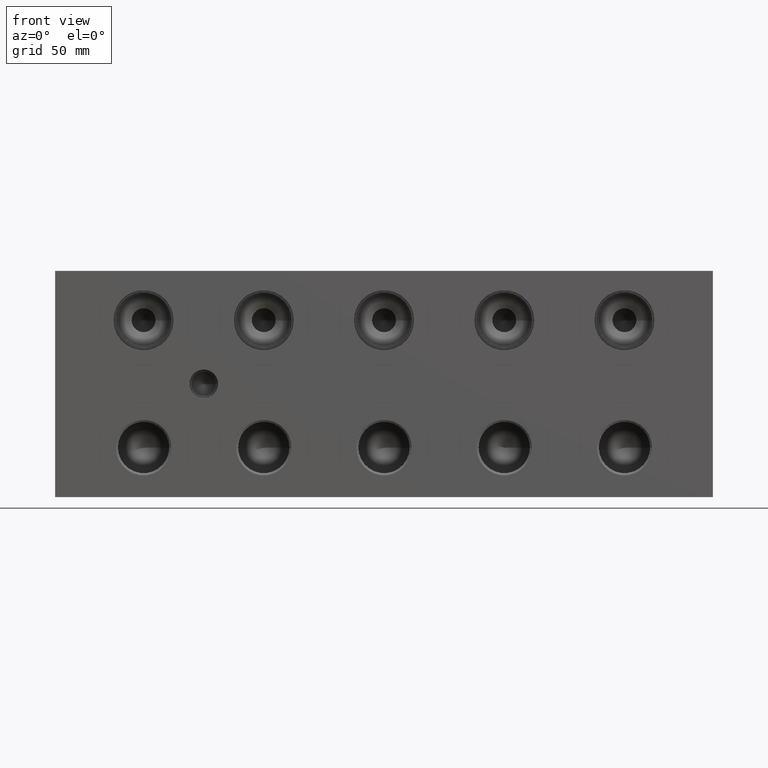
[diagram: clean part render]
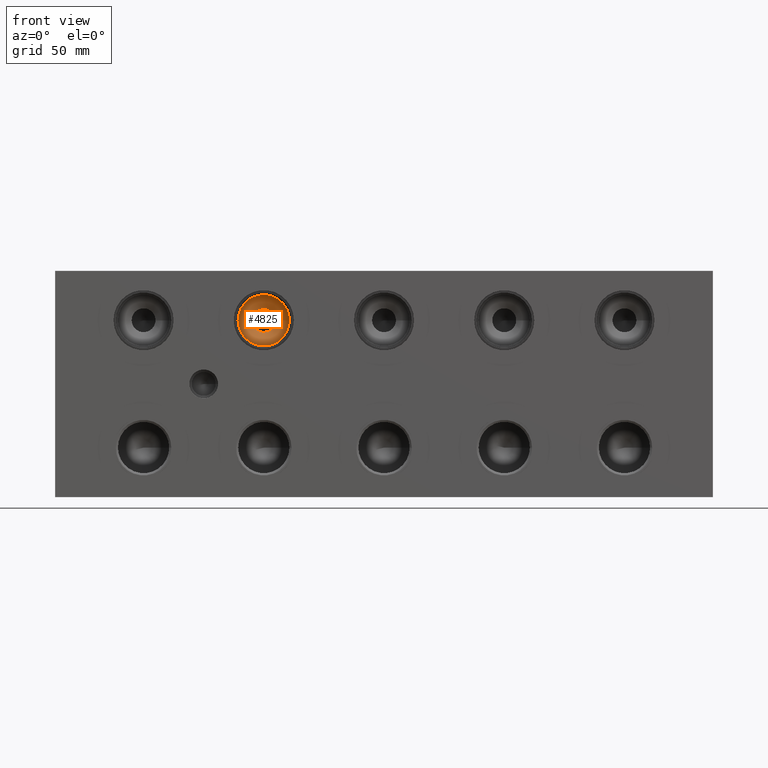
[diagram: same view with one face highlighted and labeled with its STEP entity id]
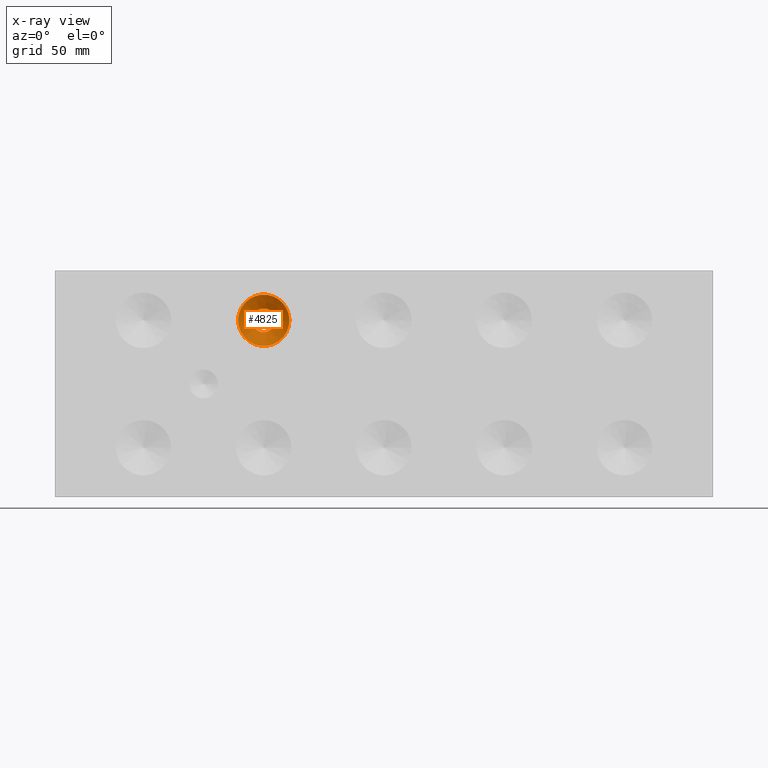
[diagram: x-ray of the same camera — body ghosted, the highlighted face saturated]
A machine part, front view. The second image highlights one B-rep face of the part: STEP entity #4825.
The next image is the same camera in x-ray: the body ghosted, the highlighted face saturated — about 0% of this face is hidden behind the body in this view.
In plain terms, the highlighted conical surface has half-angle 60 deg.
Its self-contained STEP definition (entity closure, byte-faithful):
#4791=CARTESIAN_POINT('',(99.009200000000007,30.941749000000005,79.375));
#4792=VERTEX_POINT('',#4791);
#4793=CARTESIAN_POINT('',(93.649800000000013,30.941749000000005,79.375));
#4794=DIRECTION('',(0.0,-1.0,0.0));
#4795=DIRECTION('',(1.0,0.0,0.0));
#4796=AXIS2_PLACEMENT_3D('',#4793,#4794,#4795);
#4797=CIRCLE('',#4796,5.359400000000001);
#4798=EDGE_CURVE('',#4792,#4792,#4797,.T.);
#4806=CARTESIAN_POINT('',(93.649800000000013,29.167320650000008,79.375));
#4807=DIRECTION('',(0.0,-1.0,0.0));
#4808=DIRECTION('',(1.0,0.0,0.0));
#4809=AXIS2_PLACEMENT_3D('',#4806,#4807,#4808);
#4810=CONICAL_SURFACE('',#4809,8.4328,59.999999543176351);
#4811=CARTESIAN_POINT('',(105.15600000000001,27.392892300000003,79.375));
#4812=VERTEX_POINT('',#4811);
#4813=CARTESIAN_POINT('',(93.649800000000013,27.392892300000003,79.375));
#4814=DIRECTION('',(0.0,-1.0,0.0));
#4815=DIRECTION('',(1.0,0.0,0.0));
#4816=AXIS2_PLACEMENT_3D('',#4813,#4814,#4815);
#4817=CIRCLE('',#4816,11.5062);
#4818=EDGE_CURVE('',#4812,#4812,#4817,.T.);
#4819=ORIENTED_EDGE('',*,*,#4818,.T.);
#4820=EDGE_LOOP('',(#4819));
#4821=FACE_OUTER_BOUND('',#4820,.T.);
#4822=ORIENTED_EDGE('',*,*,#4798,.F.);
#4823=EDGE_LOOP('',(#4822));
#4824=FACE_BOUND('',#4823,.T.);
#4825=ADVANCED_FACE('',(#4821,#4824),#4810,.F.);